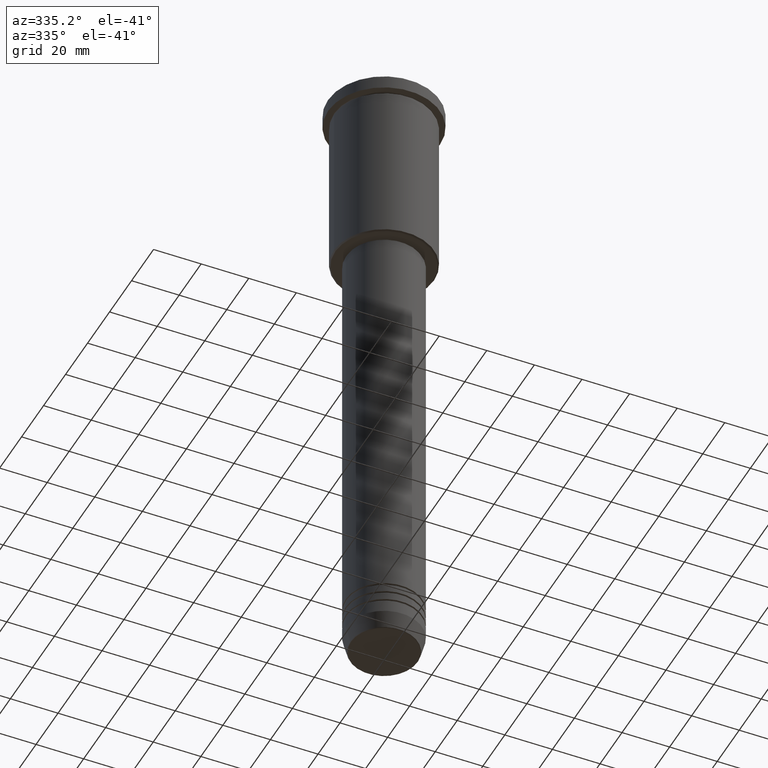
[diagram: clean part render]
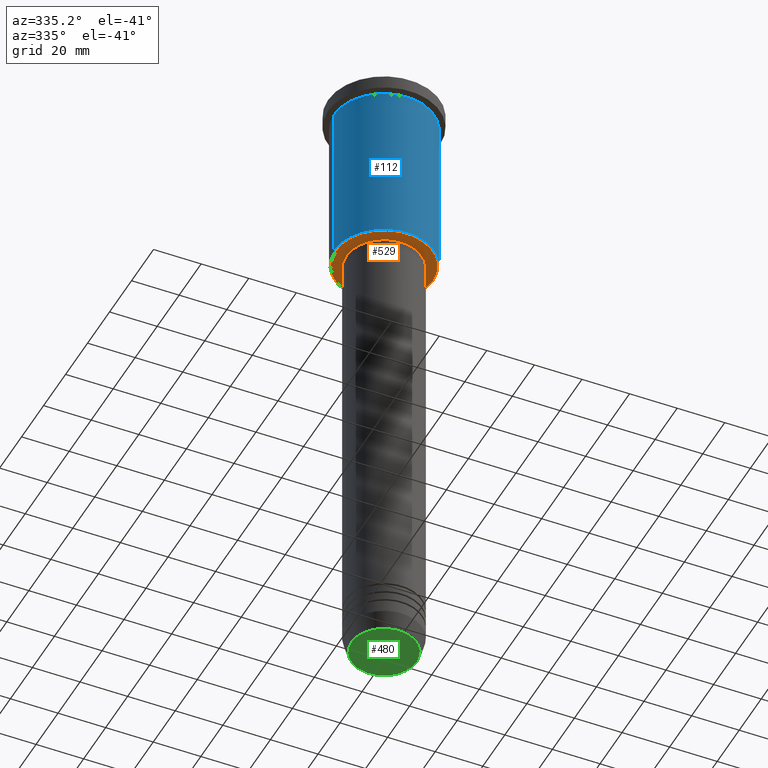
[diagram: same view with three faces highlighted in distinct colors, each labeled with its STEP entity id]
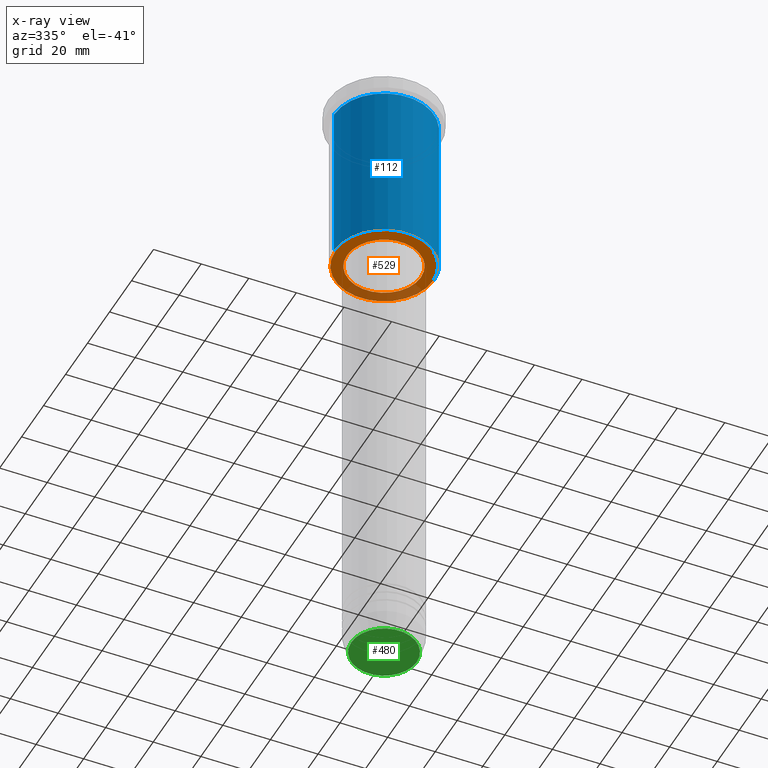
[diagram: x-ray of the same camera — body ghosted, the three highlighted faces saturated]
A machine part, auxiliary view with three faces highlighted in distinct colors.
The next image is the same camera in x-ray (body ghosted, the three faces saturated) — at least one of them is partly hidden behind the body in this view.
Their STEP definitions:

[orange] entity #529 — the highlighted planar face has unit normal (0, 0, -1).
#14 = CARTESIAN_POINT ( 'NONE',  ( -20.49999999999998934, 2.541142108230757480E-15, -76.00000000000001421 ) ) ;
#64 = DIRECTION ( 'NONE',  ( 1.000000000000000000, 0.000000000000000000, 0.000000000000000000 ) ) ;
#71 = CARTESIAN_POINT ( 'NONE',  ( 0.000000000000000000, 0.000000000000000000, -76.00000000000001421 ) ) ;
#80 = CARTESIAN_POINT ( 'NONE',  ( -15.50000000000000000, 1.898202538678397557E-15, -76.00000000000001421 ) ) ;
#82 = VERTEX_POINT ( 'NONE', #543 ) ;
#91 = AXIS2_PLACEMENT_3D ( 'NONE', #71, #176, #358 ) ;
#126 = ORIENTED_EDGE ( 'NONE', *, *, #1091, .T. ) ;
#138 = DIRECTION ( 'NONE',  ( 0.000000000000000000, 0.000000000000000000, -1.000000000000000000 ) ) ;
#151 = CARTESIAN_POINT ( 'NONE',  ( 0.000000000000000000, 0.000000000000000000, -76.00000000000001421 ) ) ;
#176 = DIRECTION ( 'NONE',  ( -0.000000000000000000, -0.000000000000000000, 1.000000000000000000 ) ) ;
#216 = CIRCLE ( 'NONE', #1041, 20.49999999999998934 ) ;
#287 = CARTESIAN_POINT ( 'NONE',  ( 20.49999999999998934, 0.000000000000000000, -76.00000000000001421 ) ) ;
#315 = CIRCLE ( 'NONE', #532, 20.49999999999998934 ) ;
#320 = EDGE_LOOP ( 'NONE', ( #746, #126 ) ) ;
#336 = CARTESIAN_POINT ( 'NONE',  ( 0.000000000000000000, 0.000000000000000000, -76.00000000000001421 ) ) ;
#358 = DIRECTION ( 'NONE',  ( 1.000000000000000000, 0.000000000000000000, 0.000000000000000000 ) ) ;
#359 = DIRECTION ( 'NONE',  ( -1.000000000000000000, 0.000000000000000000, -0.000000000000000000 ) ) ;
#404 = EDGE_CURVE ( 'NONE', #679, #739, #315, .T. ) ;
#428 = ORIENTED_EDGE ( 'NONE', *, *, #404, .T. ) ;
#442 = FACE_OUTER_BOUND ( 'NONE', #912, .T. ) ;
#486 = EDGE_CURVE ( 'NONE', #739, #679, #216, .T. ) ;
#526 = DIRECTION ( 'NONE',  ( -0.000000000000000000, -0.000000000000000000, 1.000000000000000000 ) ) ;
#529 = ADVANCED_FACE ( 'NONE', ( #442, #983 ), #730, .T. ) ;
#532 = AXIS2_PLACEMENT_3D ( 'NONE', #697, #138, #789 ) ;
#538 = VERTEX_POINT ( 'NONE', #80 ) ;
#543 = CARTESIAN_POINT ( 'NONE',  ( 15.50000000000000000, 0.000000000000000000, -76.00000000000001421 ) ) ;
#619 = DIRECTION ( 'NONE',  ( 0.000000000000000000, 0.000000000000000000, -1.000000000000000000 ) ) ;
#679 = VERTEX_POINT ( 'NONE', #287 ) ;
#697 = CARTESIAN_POINT ( 'NONE',  ( 0.000000000000000000, 0.000000000000000000, -76.00000000000001421 ) ) ;
#730 = PLANE ( 'NONE',  #877 ) ;
#739 = VERTEX_POINT ( 'NONE', #14 ) ;
#746 = ORIENTED_EDGE ( 'NONE', *, *, #1005, .T. ) ;
#765 = DIRECTION ( 'NONE',  ( 0.000000000000000000, 0.000000000000000000, -1.000000000000000000 ) ) ;
#777 = DIRECTION ( 'NONE',  ( -1.000000000000000000, 0.000000000000000000, 0.000000000000000000 ) ) ;
#785 = ORIENTED_EDGE ( 'NONE', *, *, #486, .T. ) ;
#789 = DIRECTION ( 'NONE',  ( -1.000000000000000000, 0.000000000000000000, 0.000000000000000000 ) ) ;
#877 = AXIS2_PLACEMENT_3D ( 'NONE', #1166, #619, #359 ) ;
#880 = CIRCLE ( 'NONE', #975, 15.50000000000000000 ) ;
#912 = EDGE_LOOP ( 'NONE', ( #428, #785 ) ) ;
#975 = AXIS2_PLACEMENT_3D ( 'NONE', #151, #526, #64 ) ;
#983 = FACE_BOUND ( 'NONE', #320, .T. ) ;
#1005 = EDGE_CURVE ( 'NONE', #82, #538, #1028, .T. ) ;
#1028 = CIRCLE ( 'NONE', #91, 15.50000000000000000 ) ;
#1041 = AXIS2_PLACEMENT_3D ( 'NONE', #336, #765, #777 ) ;
#1091 = EDGE_CURVE ( 'NONE', #538, #82, #880, .T. ) ;
#1166 = CARTESIAN_POINT ( 'NONE',  ( 0.000000000000000000, 21.00000000000000000, -76.00000000000001421 ) ) ;

[blue] entity #112 — the highlighted cylindrical surface (partial cylindrical patch) has radius 21 mm, axis along (-0, -0, 1).
#4 = DIRECTION ( 'NONE',  ( -0.000000000000000000, -0.000000000000000000, 1.000000000000000000 ) ) ;
#12 = VERTEX_POINT ( 'NONE', #407 ) ;
#112 = ADVANCED_FACE ( 'NONE', ( #361 ), #174, .T. ) ;
#119 = DIRECTION ( 'NONE',  ( -0.000000000000000000, -0.000000000000000000, 1.000000000000000000 ) ) ;
#174 = CYLINDRICAL_SURFACE ( 'NONE', #1081, 21.00000000000000000 ) ;
#208 = ORIENTED_EDGE ( 'NONE', *, *, #437, .T. ) ;
#252 = VERTEX_POINT ( 'NONE', #1021 ) ;
#317 = CARTESIAN_POINT ( 'NONE',  ( 21.00000000000000000, 0.000000000000000000, 0.000000000000000000 ) ) ;
#361 = FACE_OUTER_BOUND ( 'NONE', #459, .T. ) ;
#407 = CARTESIAN_POINT ( 'NONE',  ( -21.00000000000000000, 2.571758278209441661E-15, -75.49999999999998579 ) ) ;
#416 = DIRECTION ( 'NONE',  ( 1.000000000000000000, 0.000000000000000000, 0.000000000000000000 ) ) ;
#427 = DIRECTION ( 'NONE',  ( -0.000000000000000000, -0.000000000000000000, 1.000000000000000000 ) ) ;
#437 = EDGE_CURVE ( 'NONE', #12, #1147, #1134, .T. ) ;
#459 = EDGE_LOOP ( 'NONE', ( #1022, #208, #593, #515 ) ) ;
#508 = DIRECTION ( 'NONE',  ( -1.000000000000000000, 0.000000000000000000, 0.000000000000000000 ) ) ;
#515 = ORIENTED_EDGE ( 'NONE', *, *, #910, .F. ) ;
#553 = DIRECTION ( 'NONE',  ( 1.000000000000000000, 0.000000000000000000, 0.000000000000000000 ) ) ;
#583 = VERTEX_POINT ( 'NONE', #889 ) ;
#593 = ORIENTED_EDGE ( 'NONE', *, *, #842, .T. ) ;
#594 = VECTOR ( 'NONE', #1126, 1000.000000000000000 ) ;
#625 = AXIS2_PLACEMENT_3D ( 'NONE', #955, #427, #508 ) ;
#662 = CARTESIAN_POINT ( 'NONE',  ( -21.00000000000000000, 2.571758278209441661E-15, 0.000000000000000000 ) ) ;
#702 = LINE ( 'NONE', #317, #594 ) ;
#718 = EDGE_CURVE ( 'NONE', #12, #583, #849, .T. ) ;
#742 = DIRECTION ( 'NONE',  ( -0.000000000000000000, -0.000000000000000000, 1.000000000000000000 ) ) ;
#837 = CARTESIAN_POINT ( 'NONE',  ( 21.00000000000000000, 0.000000000000000000, -75.49999999999998579 ) ) ;
#838 = CIRCLE ( 'NONE', #1180, 21.00000000000000000 ) ;
#842 = EDGE_CURVE ( 'NONE', #1147, #252, #702, .T. ) ;
#849 = LINE ( 'NONE', #662, #951 ) ;
#889 = CARTESIAN_POINT ( 'NONE',  ( -21.00000000000000000, 2.571758278209441661E-15, -6.999999999999993783 ) ) ;
#910 = EDGE_CURVE ( 'NONE', #583, #252, #838, .T. ) ;
#951 = VECTOR ( 'NONE', #742, 1000.000000000000000 ) ;
#955 = CARTESIAN_POINT ( 'NONE',  ( 0.000000000000000000, 0.000000000000000000, -75.49999999999998579 ) ) ;
#1006 = CARTESIAN_POINT ( 'NONE',  ( 0.000000000000000000, 0.000000000000000000, 0.000000000000000000 ) ) ;
#1021 = CARTESIAN_POINT ( 'NONE',  ( 21.00000000000000000, 0.000000000000000000, -6.999999999999993783 ) ) ;
#1022 = ORIENTED_EDGE ( 'NONE', *, *, #718, .F. ) ;
#1059 = CARTESIAN_POINT ( 'NONE',  ( 0.000000000000000000, 0.000000000000000000, -6.999999999999993783 ) ) ;
#1081 = AXIS2_PLACEMENT_3D ( 'NONE', #1006, #4, #553 ) ;
#1126 = DIRECTION ( 'NONE',  ( -0.000000000000000000, -0.000000000000000000, 1.000000000000000000 ) ) ;
#1134 = CIRCLE ( 'NONE', #625, 21.00000000000000000 ) ;
#1147 = VERTEX_POINT ( 'NONE', #837 ) ;
#1180 = AXIS2_PLACEMENT_3D ( 'NONE', #1059, #119, #416 ) ;

[green] entity #480 — the highlighted planar face has unit normal (0, -0, 1).
#67 = CIRCLE ( 'NONE', #1096, 13.74069215899265828 ) ;
#118 = ORIENTED_EDGE ( 'NONE', *, *, #284, .T. ) ;
#165 = EDGE_CURVE ( 'NONE', #940, #803, #871, .T. ) ;
#168 = EDGE_LOOP ( 'NONE', ( #919, #118 ) ) ;
#198 = AXIS2_PLACEMENT_3D ( 'NONE', #1149, #522, #972 ) ;
#201 = DIRECTION ( 'NONE',  ( 1.000000000000000000, 0.000000000000000000, 0.000000000000000000 ) ) ;
#282 = DIRECTION ( 'NONE',  ( 0.000000000000000000, 0.000000000000000000, -1.000000000000000000 ) ) ;
#284 = EDGE_CURVE ( 'NONE', #803, #940, #67, .T. ) ;
#329 = PLANE ( 'NONE',  #198 ) ;
#480 = ADVANCED_FACE ( 'NONE', ( #614 ), #329, .F. ) ;
#510 = AXIS2_PLACEMENT_3D ( 'NONE', #621, #548, #985 ) ;
#522 = DIRECTION ( 'NONE',  ( 0.000000000000000000, -0.000000000000000000, 1.000000000000000000 ) ) ;
#548 = DIRECTION ( 'NONE',  ( 0.000000000000000000, 0.000000000000000000, -1.000000000000000000 ) ) ;
#614 = FACE_OUTER_BOUND ( 'NONE', #168, .T. ) ;
#621 = CARTESIAN_POINT ( 'NONE',  ( 0.000000000000000000, 0.000000000000000000, -271.0000000000000000 ) ) ;
#783 = CARTESIAN_POINT ( 'NONE',  ( 13.74069215899265828, 0.000000000000000000, -271.0000000000000000 ) ) ;
#803 = VERTEX_POINT ( 'NONE', #1020 ) ;
#845 = CARTESIAN_POINT ( 'NONE',  ( 0.000000000000000000, 0.000000000000000000, -271.0000000000000000 ) ) ;
#871 = CIRCLE ( 'NONE', #510, 13.74069215899265828 ) ;
#919 = ORIENTED_EDGE ( 'NONE', *, *, #165, .T. ) ;
#940 = VERTEX_POINT ( 'NONE', #783 ) ;
#972 = DIRECTION ( 'NONE',  ( 1.000000000000000000, 0.000000000000000000, 0.000000000000000000 ) ) ;
#985 = DIRECTION ( 'NONE',  ( 1.000000000000000000, 0.000000000000000000, 0.000000000000000000 ) ) ;
#1020 = CARTESIAN_POINT ( 'NONE',  ( -13.74069215899265828, 1.712322416342415986E-15, -271.0000000000000000 ) ) ;
#1096 = AXIS2_PLACEMENT_3D ( 'NONE', #845, #282, #201 ) ;
#1149 = CARTESIAN_POINT ( 'NONE',  ( 0.000000000000000000, 0.000000000000000000, -271.0000000000000000 ) ) ;